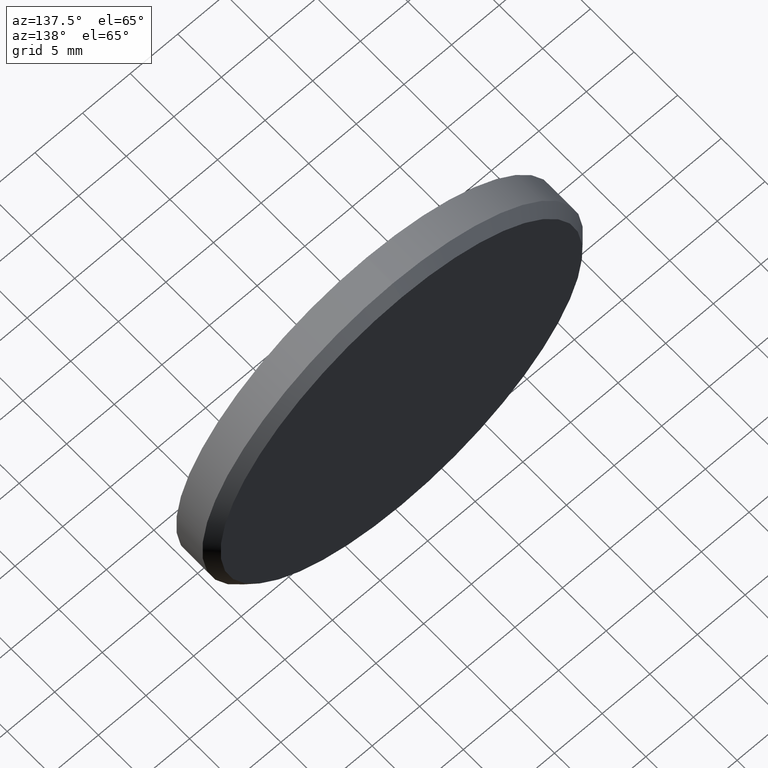
[diagram: clean part render]
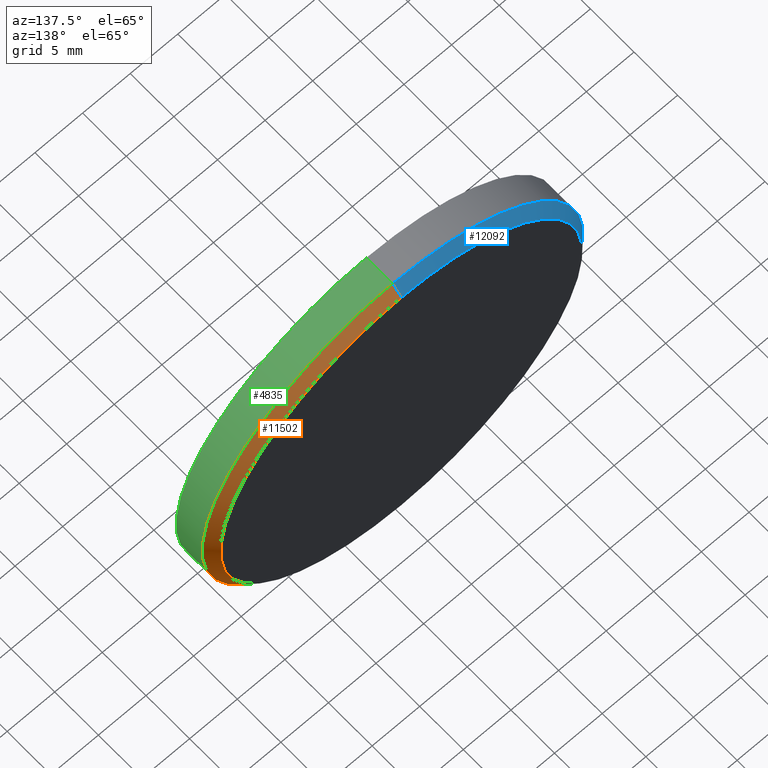
[diagram: same view with three faces highlighted in distinct colors, each labeled with its STEP entity id]
A machine part, auxiliary view with three faces highlighted in distinct colors.
Their STEP definitions:

[orange] entity #11502 — the highlighted conical surface has half-angle 45 deg.
#98 = AXIS2_PLACEMENT_3D ( 'NONE', #3514, #242, #2517 ) ;
#242 = DIRECTION ( 'NONE',  ( 0.000000000000000000, -1.000000000000000000, 0.000000000000000000 ) ) ;
#290 = DIRECTION ( 'NONE',  ( 0.000000000000000000, 0.000000000000000000, -1.000000000000000000 ) ) ;
#555 = CARTESIAN_POINT ( 'NONE',  ( 2.326828918379969787E-15, 2.000000000000000000, 18.99999999999998934 ) ) ;
#595 = EDGE_CURVE ( 'NONE', #10509, #700, #7327, .T. ) ;
#628 = CONICAL_SURFACE ( 'NONE', #14089, 18.99999999999998934, 0.7853981633974482790 ) ;
#700 = VERTEX_POINT ( 'NONE', #9888 ) ;
#873 = CIRCLE ( 'NONE', #6631, 18.99999999999998934 ) ;
#1390 = ORIENTED_EDGE ( 'NONE', *, *, #9882, .F. ) ;
#1576 = VERTEX_POINT ( 'NONE', #7737 ) ;
#1749 = VERTEX_POINT ( 'NONE', #1915 ) ;
#1915 = CARTESIAN_POINT ( 'NONE',  ( 0.000000000000000000, 2.000000000000000000, -18.99999999999998934 ) ) ;
#2499 = CARTESIAN_POINT ( 'NONE',  ( 0.000000000000000000, 2.000000000000000000, 0.000000000000000000 ) ) ;
#2517 = DIRECTION ( 'NONE',  ( 0.000000000000000000, 0.000000000000000000, 1.000000000000000000 ) ) ;
#2636 = CARTESIAN_POINT ( 'NONE',  ( 2.388061258337338150E-15, 2.000000000000000000, 18.99999999999998934 ) ) ;
#3514 = CARTESIAN_POINT ( 'NONE',  ( 0.000000000000000000, 0.9999999999999887867, 0.000000000000000000 ) ) ;
#3791 = ORIENTED_EDGE ( 'NONE', *, *, #9291, .F. ) ;
#4450 = ORIENTED_EDGE ( 'NONE', *, *, #14498, .F. ) ;
#4902 = LINE ( 'NONE', #11596, #5617 ) ;
#5041 = DIRECTION ( 'NONE',  ( 0.000000000000000000, -1.000000000000000000, 0.000000000000000000 ) ) ;
#5381 = EDGE_LOOP ( 'NONE', ( #4450, #11190, #1390, #3791 ) ) ;
#5617 = VECTOR ( 'NONE', #10457, 1000.000000000000114 ) ;
#6631 = AXIS2_PLACEMENT_3D ( 'NONE', #2499, #11446, #13719 ) ;
#7327 = LINE ( 'NONE', #555, #11018 ) ;
#7737 = CARTESIAN_POINT ( 'NONE',  ( 0.000000000000000000, 0.9999999999999887867, -20.00000000000000000 ) ) ;
#9291 = EDGE_CURVE ( 'NONE', #1749, #1576, #4902, .T. ) ;
#9882 = EDGE_CURVE ( 'NONE', #1576, #700, #12493, .T. ) ;
#9888 = CARTESIAN_POINT ( 'NONE',  ( 2.449293598294706513E-15, 0.9999999999999887867, 20.00000000000000000 ) ) ;
#10457 = DIRECTION ( 'NONE',  ( 0.000000000000000000, -0.7071067811865474617, -0.7071067811865474617 ) ) ;
#10509 = VERTEX_POINT ( 'NONE', #2636 ) ;
#11018 = VECTOR ( 'NONE', #11771, 1000.000000000000114 ) ;
#11190 = ORIENTED_EDGE ( 'NONE', *, *, #595, .T. ) ;
#11446 = DIRECTION ( 'NONE',  ( 0.000000000000000000, 1.000000000000000000, 0.000000000000000000 ) ) ;
#11502 = ADVANCED_FACE ( 'NONE', ( #12649 ), #628, .T. ) ;
#11596 = CARTESIAN_POINT ( 'NONE',  ( 0.000000000000000000, 2.000000000000000000, -18.99999999999998934 ) ) ;
#11755 = CARTESIAN_POINT ( 'NONE',  ( 0.000000000000000000, 2.000000000000000000, 0.000000000000000000 ) ) ;
#11771 = DIRECTION ( 'NONE',  ( 8.659560562354932858E-17, -0.7071067811865474617, 0.7071067811865474617 ) ) ;
#12493 = CIRCLE ( 'NONE', #98, 20.00000000000000000 ) ;
#12649 = FACE_OUTER_BOUND ( 'NONE', #5381, .T. ) ;
#13719 = DIRECTION ( 'NONE',  ( 0.000000000000000000, 0.000000000000000000, 1.000000000000000000 ) ) ;
#14089 = AXIS2_PLACEMENT_3D ( 'NONE', #11755, #5041, #290 ) ;
#14498 = EDGE_CURVE ( 'NONE', #10509, #1749, #873, .T. ) ;

[blue] entity #12092 — the highlighted conical surface has half-angle 45 deg.
#555 = CARTESIAN_POINT ( 'NONE',  ( 2.326828918379969787E-15, 2.000000000000000000, 18.99999999999998934 ) ) ;
#594 = ORIENTED_EDGE ( 'NONE', *, *, #595, .F. ) ;
#595 = EDGE_CURVE ( 'NONE', #10509, #700, #7327, .T. ) ;
#700 = VERTEX_POINT ( 'NONE', #9888 ) ;
#746 = DIRECTION ( 'NONE',  ( 0.000000000000000000, 1.000000000000000000, 0.000000000000000000 ) ) ;
#1527 = EDGE_CURVE ( 'NONE', #1749, #10509, #3039, .T. ) ;
#1576 = VERTEX_POINT ( 'NONE', #7737 ) ;
#1749 = VERTEX_POINT ( 'NONE', #1915 ) ;
#1915 = CARTESIAN_POINT ( 'NONE',  ( 0.000000000000000000, 2.000000000000000000, -18.99999999999998934 ) ) ;
#1990 = DIRECTION ( 'NONE',  ( 0.000000000000000000, 0.000000000000000000, -1.000000000000000000 ) ) ;
#2040 = FACE_OUTER_BOUND ( 'NONE', #12808, .T. ) ;
#2636 = CARTESIAN_POINT ( 'NONE',  ( 2.388061258337338150E-15, 2.000000000000000000, 18.99999999999998934 ) ) ;
#3017 = DIRECTION ( 'NONE',  ( 0.000000000000000000, 0.000000000000000000, 1.000000000000000000 ) ) ;
#3039 = CIRCLE ( 'NONE', #12632, 18.99999999999998934 ) ;
#3490 = AXIS2_PLACEMENT_3D ( 'NONE', #3676, #3531, #9159 ) ;
#3531 = DIRECTION ( 'NONE',  ( 0.000000000000000000, -1.000000000000000000, 0.000000000000000000 ) ) ;
#3676 = CARTESIAN_POINT ( 'NONE',  ( 0.000000000000000000, 0.9999999999999887867, 0.000000000000000000 ) ) ;
#4902 = LINE ( 'NONE', #11596, #5617 ) ;
#5408 = ORIENTED_EDGE ( 'NONE', *, *, #1527, .F. ) ;
#5617 = VECTOR ( 'NONE', #10457, 1000.000000000000114 ) ;
#6411 = CARTESIAN_POINT ( 'NONE',  ( 0.000000000000000000, 2.000000000000000000, 0.000000000000000000 ) ) ;
#6520 = EDGE_CURVE ( 'NONE', #700, #1576, #8638, .T. ) ;
#7327 = LINE ( 'NONE', #555, #11018 ) ;
#7408 = DIRECTION ( 'NONE',  ( 0.000000000000000000, -1.000000000000000000, 0.000000000000000000 ) ) ;
#7737 = CARTESIAN_POINT ( 'NONE',  ( 0.000000000000000000, 0.9999999999999887867, -20.00000000000000000 ) ) ;
#8490 = ORIENTED_EDGE ( 'NONE', *, *, #6520, .F. ) ;
#8638 = CIRCLE ( 'NONE', #3490, 20.00000000000000000 ) ;
#9159 = DIRECTION ( 'NONE',  ( 0.000000000000000000, 0.000000000000000000, 1.000000000000000000 ) ) ;
#9291 = EDGE_CURVE ( 'NONE', #1749, #1576, #4902, .T. ) ;
#9888 = CARTESIAN_POINT ( 'NONE',  ( 2.449293598294706513E-15, 0.9999999999999887867, 20.00000000000000000 ) ) ;
#10312 = CONICAL_SURFACE ( 'NONE', #12840, 18.99999999999998934, 0.7853981633974482790 ) ;
#10457 = DIRECTION ( 'NONE',  ( 0.000000000000000000, -0.7071067811865474617, -0.7071067811865474617 ) ) ;
#10509 = VERTEX_POINT ( 'NONE', #2636 ) ;
#10938 = CARTESIAN_POINT ( 'NONE',  ( 0.000000000000000000, 2.000000000000000000, 0.000000000000000000 ) ) ;
#11018 = VECTOR ( 'NONE', #11771, 1000.000000000000114 ) ;
#11205 = ORIENTED_EDGE ( 'NONE', *, *, #9291, .T. ) ;
#11596 = CARTESIAN_POINT ( 'NONE',  ( 0.000000000000000000, 2.000000000000000000, -18.99999999999998934 ) ) ;
#11771 = DIRECTION ( 'NONE',  ( 8.659560562354932858E-17, -0.7071067811865474617, 0.7071067811865474617 ) ) ;
#12092 = ADVANCED_FACE ( 'NONE', ( #2040 ), #10312, .T. ) ;
#12632 = AXIS2_PLACEMENT_3D ( 'NONE', #6411, #746, #3017 ) ;
#12808 = EDGE_LOOP ( 'NONE', ( #594, #5408, #11205, #8490 ) ) ;
#12840 = AXIS2_PLACEMENT_3D ( 'NONE', #10938, #7408, #1990 ) ;

[green] entity #4835 — the highlighted cylindrical surface (partial cylindrical patch) has radius 20 mm, axis along (-0, -1, -0).
#98 = AXIS2_PLACEMENT_3D ( 'NONE', #3514, #242, #2517 ) ;
#242 = DIRECTION ( 'NONE',  ( 0.000000000000000000, -1.000000000000000000, 0.000000000000000000 ) ) ;
#482 = DIRECTION ( 'NONE',  ( -0.000000000000000000, -1.000000000000000000, -0.000000000000000000 ) ) ;
#700 = VERTEX_POINT ( 'NONE', #9888 ) ;
#1064 = FACE_OUTER_BOUND ( 'NONE', #11399, .T. ) ;
#1092 = VECTOR ( 'NONE', #482, 1000.000000000000000 ) ;
#1224 = CYLINDRICAL_SURFACE ( 'NONE', #3859, 20.00000000000000000 ) ;
#1576 = VERTEX_POINT ( 'NONE', #7737 ) ;
#1639 = DIRECTION ( 'NONE',  ( 0.000000000000000000, 0.000000000000000000, 1.000000000000000000 ) ) ;
#2003 = EDGE_CURVE ( 'NONE', #1576, #9084, #6605, .T. ) ;
#2306 = DIRECTION ( 'NONE',  ( -0.000000000000000000, -1.000000000000000000, -0.000000000000000000 ) ) ;
#2396 = EDGE_CURVE ( 'NONE', #9073, #9084, #13465, .T. ) ;
#2517 = DIRECTION ( 'NONE',  ( 0.000000000000000000, 0.000000000000000000, 1.000000000000000000 ) ) ;
#3514 = CARTESIAN_POINT ( 'NONE',  ( 0.000000000000000000, 0.9999999999999887867, 0.000000000000000000 ) ) ;
#3826 = CARTESIAN_POINT ( 'NONE',  ( 0.000000000000000000, -2.000000000000000000, 0.000000000000000000 ) ) ;
#3859 = AXIS2_PLACEMENT_3D ( 'NONE', #11988, #4085, #9768 ) ;
#4085 = DIRECTION ( 'NONE',  ( -0.000000000000000000, -1.000000000000000000, -0.000000000000000000 ) ) ;
#4835 = ADVANCED_FACE ( 'NONE', ( #1064 ), #1224, .T. ) ;
#5238 = CARTESIAN_POINT ( 'NONE',  ( 0.000000000000000000, 2.000000000000000000, -20.00000000000000000 ) ) ;
#6605 = LINE ( 'NONE', #5238, #1092 ) ;
#6930 = VECTOR ( 'NONE', #2306, 1000.000000000000000 ) ;
#7280 = CARTESIAN_POINT ( 'NONE',  ( 0.000000000000000000, -2.000000000000000000, -20.00000000000000000 ) ) ;
#7737 = CARTESIAN_POINT ( 'NONE',  ( 0.000000000000000000, 0.9999999999999887867, -20.00000000000000000 ) ) ;
#7739 = ORIENTED_EDGE ( 'NONE', *, *, #9882, .T. ) ;
#8058 = CARTESIAN_POINT ( 'NONE',  ( 2.449293598294706513E-15, 2.000000000000000000, 20.00000000000000000 ) ) ;
#9073 = VERTEX_POINT ( 'NONE', #14035 ) ;
#9084 = VERTEX_POINT ( 'NONE', #7280 ) ;
#9446 = ORIENTED_EDGE ( 'NONE', *, *, #14324, .T. ) ;
#9761 = ORIENTED_EDGE ( 'NONE', *, *, #2396, .T. ) ;
#9768 = DIRECTION ( 'NONE',  ( 0.000000000000000000, 0.000000000000000000, -1.000000000000000000 ) ) ;
#9806 = AXIS2_PLACEMENT_3D ( 'NONE', #3826, #12865, #1639 ) ;
#9882 = EDGE_CURVE ( 'NONE', #1576, #700, #12493, .T. ) ;
#9888 = CARTESIAN_POINT ( 'NONE',  ( 2.449293598294706513E-15, 0.9999999999999887867, 20.00000000000000000 ) ) ;
#10338 = ORIENTED_EDGE ( 'NONE', *, *, #2003, .F. ) ;
#11399 = EDGE_LOOP ( 'NONE', ( #7739, #9446, #9761, #10338 ) ) ;
#11988 = CARTESIAN_POINT ( 'NONE',  ( 0.000000000000000000, 2.000000000000000000, 0.000000000000000000 ) ) ;
#12493 = CIRCLE ( 'NONE', #98, 20.00000000000000000 ) ;
#12865 = DIRECTION ( 'NONE',  ( 0.000000000000000000, 1.000000000000000000, 0.000000000000000000 ) ) ;
#13465 = CIRCLE ( 'NONE', #9806, 20.00000000000000000 ) ;
#13618 = LINE ( 'NONE', #8058, #6930 ) ;
#14035 = CARTESIAN_POINT ( 'NONE',  ( 2.449293598294706513E-15, -2.000000000000000000, 20.00000000000000000 ) ) ;
#14324 = EDGE_CURVE ( 'NONE', #700, #9073, #13618, .T. ) ;